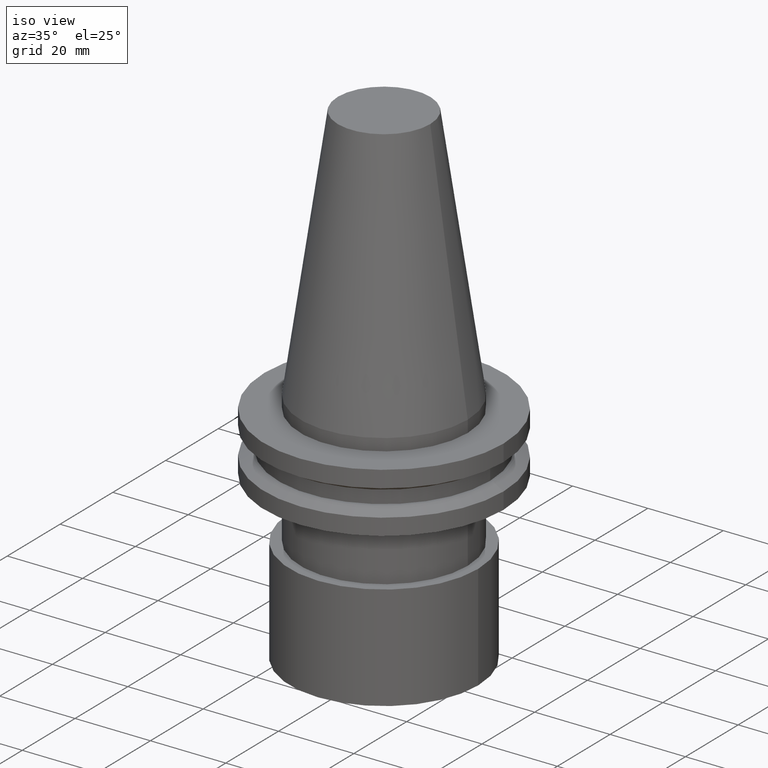
[diagram: clean part render]
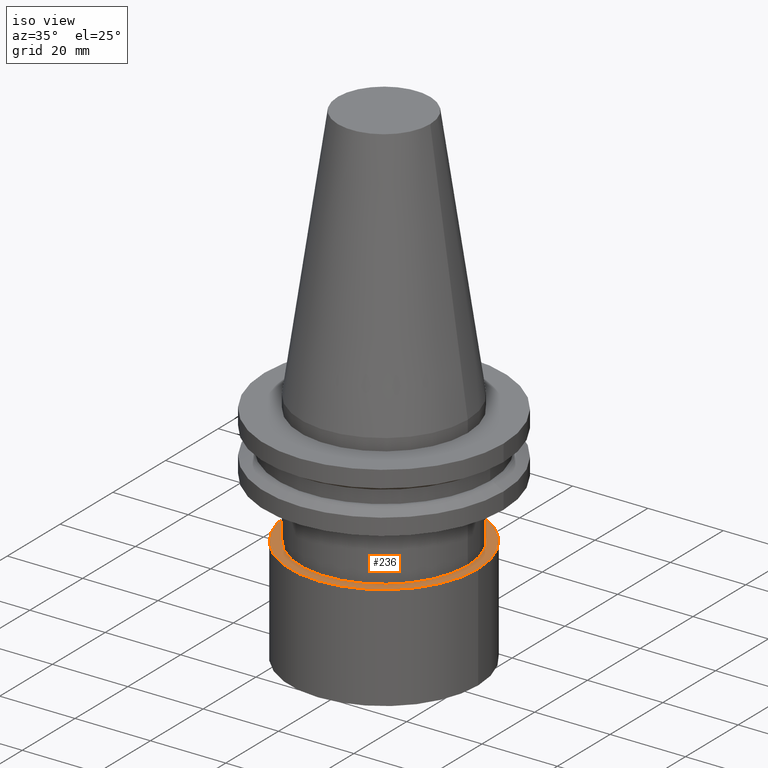
[diagram: same view with one face highlighted and labeled with its STEP entity id]
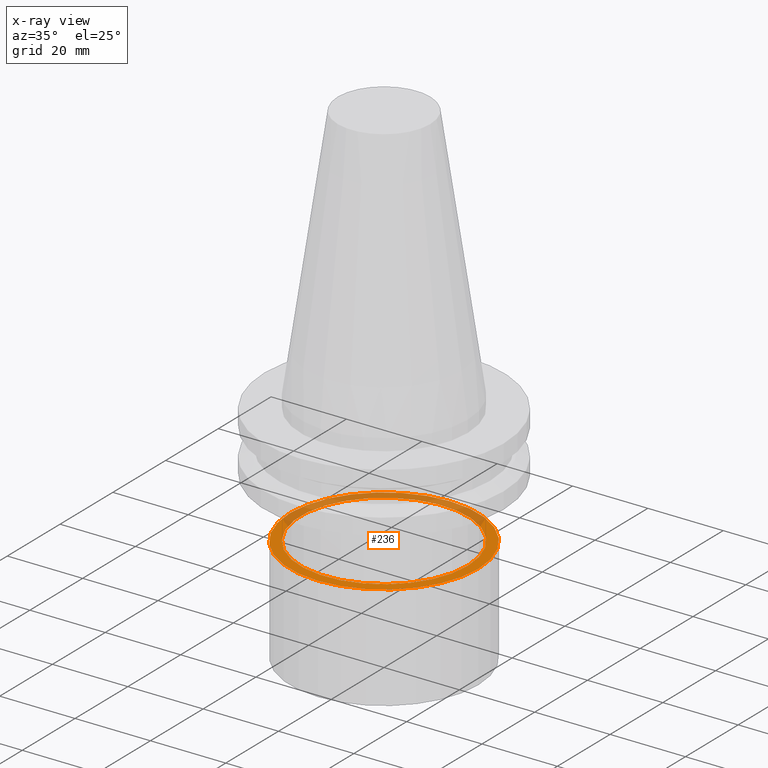
[diagram: x-ray of the same camera — body ghosted, the highlighted face saturated]
A machine part, iso view. The second image highlights one B-rep face of the part: STEP entity #236.
The next image is the same camera in x-ray: the body ghosted, the highlighted face saturated — about 37% of this face is hidden behind the body in this view.
In plain terms, the highlighted planar face has unit normal (0, 0, -1).
Its self-contained STEP definition (entity closure, byte-faithful):
#44 = AXIS2_PLACEMENT_3D ( 'NONE', #211, #274, #170 ) ;
#47 = CARTESIAN_POINT ( 'NONE',  ( 0.000000000000000000, 0.000000000000000000, -35.04999999999999716 ) ) ;
#70 = AXIS2_PLACEMENT_3D ( 'NONE', #47, #303, #264 ) ;
#99 = PLANE ( 'NONE',  #225 ) ;
#127 = CIRCLE ( 'NONE', #44, 24.99999999999999289 ) ;
#139 = ORIENTED_EDGE ( 'NONE', *, *, #260, .F. ) ;
#169 = CARTESIAN_POINT ( 'NONE',  ( 24.99999999999999289, 0.000000000000000000, -35.04999999999999716 ) ) ;
#170 = DIRECTION ( 'NONE',  ( 1.000000000000000000, 0.000000000000000000, 0.000000000000000000 ) ) ;
#193 = VERTEX_POINT ( 'NONE', #169 ) ;
#197 = CIRCLE ( 'NONE', #70, 22.22500000000000142 ) ;
#211 = CARTESIAN_POINT ( 'NONE',  ( 0.000000000000000000, 0.000000000000000000, -35.04999999999999716 ) ) ;
#225 = AXIS2_PLACEMENT_3D ( 'NONE', #299, #226, #389 ) ;
#226 = DIRECTION ( 'NONE',  ( 0.000000000000000000, 0.000000000000000000, -1.000000000000000000 ) ) ;
#231 = CARTESIAN_POINT ( 'NONE',  ( 22.22500000000000142, 0.000000000000000000, -35.04999999999999716 ) ) ;
#236 = ADVANCED_FACE ( 'NONE', ( #255, #384 ), #99, .F. ) ;
#255 = FACE_BOUND ( 'NONE', #372, .T. ) ;
#260 = EDGE_CURVE ( 'NONE', #332, #332, #197, .T. ) ;
#264 = DIRECTION ( 'NONE',  ( 1.000000000000000000, 0.000000000000000000, 0.000000000000000000 ) ) ;
#274 = DIRECTION ( 'NONE',  ( -0.000000000000000000, -0.000000000000000000, 1.000000000000000000 ) ) ;
#299 = CARTESIAN_POINT ( 'NONE',  ( 0.000000000000000000, 0.000000000000000000, -35.04999999999999716 ) ) ;
#303 = DIRECTION ( 'NONE',  ( -0.000000000000000000, -0.000000000000000000, 1.000000000000000000 ) ) ;
#304 = EDGE_CURVE ( 'NONE', #193, #193, #127, .T. ) ;
#332 = VERTEX_POINT ( 'NONE', #231 ) ;
#334 = EDGE_LOOP ( 'NONE', ( #377 ) ) ;
#372 = EDGE_LOOP ( 'NONE', ( #139 ) ) ;
#377 = ORIENTED_EDGE ( 'NONE', *, *, #304, .T. ) ;
#384 = FACE_OUTER_BOUND ( 'NONE', #334, .T. ) ;
#389 = DIRECTION ( 'NONE',  ( -1.000000000000000000, 0.000000000000000000, -0.000000000000000000 ) ) ;